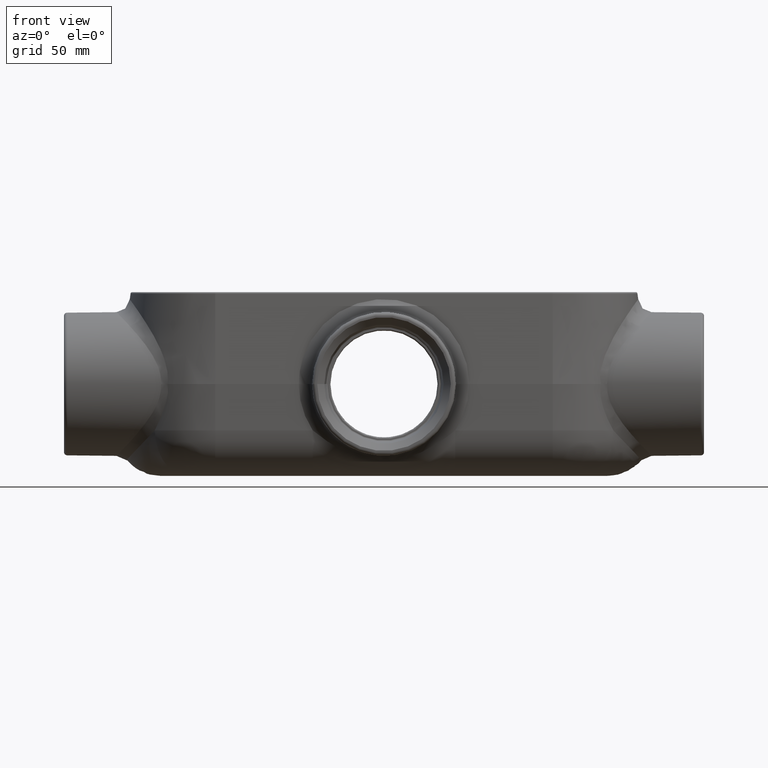
[diagram: clean part render]
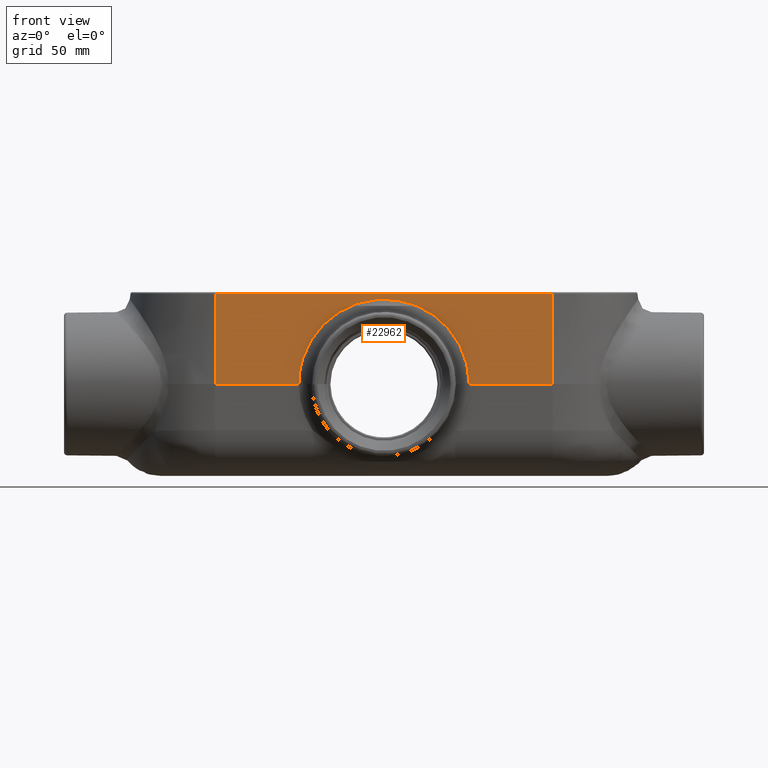
[diagram: same view with one face highlighted and labeled with its STEP entity id]
A machine part, front view. The second image highlights one B-rep face of the part: STEP entity #22962.
In plain terms, the highlighted planar face has unit normal (-0, -0.9997, 0.0262).
Its self-contained STEP definition (entity closure, byte-faithful):
#191=PLANE('',#24298);
#1157=ELLIPSE('',#24292,1.59429632553232,1.59375);
#1188=LINE('',#31611,#3934);
#1198=LINE('',#31955,#3944);
#1199=LINE('',#32503,#3945);
#1200=LINE('',#32505,#3946);
#1201=LINE('',#32506,#3947);
#3934=VECTOR('',#25498,0.393700787401575);
#3944=VECTOR('',#25532,0.393700787401575);
#3945=VECTOR('',#25565,0.393700787401575);
#3946=VECTOR('',#25566,0.393700787401575);
#3947=VECTOR('',#25567,0.393700787401575);
#7524=FACE_OUTER_BOUND('',#8815,.T.);
#8815=EDGE_LOOP('',(#16205,#16206,#16207,#16208,#16209,#16210));
#10384=VERTEX_POINT('',#31608);
#10385=VERTEX_POINT('',#31610);
#10397=VERTEX_POINT('',#31952);
#10398=VERTEX_POINT('',#31954);
#10404=VERTEX_POINT('',#32433);
#10407=VERTEX_POINT('',#32504);
#12683=EDGE_CURVE('',#10385,#10384,#1188,.T.);
#12703=EDGE_CURVE('',#10397,#10398,#1198,.T.);
#12714=EDGE_CURVE('',#10404,#10384,#1157,.T.);
#12720=EDGE_CURVE('',#10404,#10398,#1199,.T.);
#12721=EDGE_CURVE('',#10407,#10397,#1200,.T.);
#12722=EDGE_CURVE('',#10407,#10385,#1201,.T.);
#16205=ORIENTED_EDGE('',*,*,#12714,.F.);
#16206=ORIENTED_EDGE('',*,*,#12720,.T.);
#16207=ORIENTED_EDGE('',*,*,#12703,.F.);
#16208=ORIENTED_EDGE('',*,*,#12721,.F.);
#16209=ORIENTED_EDGE('',*,*,#12722,.T.);
#16210=ORIENTED_EDGE('',*,*,#12683,.T.);
#22962=ADVANCED_FACE('',(#7524),#191,.T.);
#24292=AXIS2_PLACEMENT_3D('',#32434,#25551,#25552);
#24298=AXIS2_PLACEMENT_3D('',#32502,#25563,#25564);
#25498=DIRECTION('',(1.,-5.53943038715288E-17,0.));
#25532=DIRECTION('',(0.,-0.0261769483078731,-0.999657324975557));
#25551=DIRECTION('center_axis',(-5.53753216270957E-17,-0.999657324975557,
0.0261769483078731));
#25552=DIRECTION('ref_axis',(0.,0.0261769483078731,0.999657324975557));
#25563=DIRECTION('center_axis',(-5.53753216270957E-17,-0.999657324975557,
0.0261769483078731));
#25564=DIRECTION('ref_axis',(-1.,5.53943038715288E-17,0.));
#25565=DIRECTION('',(1.,-5.53943038715288E-17,0.));
#25566=DIRECTION('',(1.,-5.53943038715288E-17,0.));
#25567=DIRECTION('',(0.,-0.0261769483078731,-0.999657324975557));
#31608=CARTESIAN_POINT('',(-1.59373656400959,-1.63875705269704,-1.71875));
#31610=CARTESIAN_POINT('',(-3.15625,-1.63875705269704,-1.71875));
#31611=CARTESIAN_POINT('',(-3.15625,-1.63875705269704,-1.71875));
#31952=CARTESIAN_POINT('',(3.15625,-1.59454688918918,-0.030431970365379));
#31954=CARTESIAN_POINT('',(3.15625,-1.63875705269704,-1.71875));
#31955=CARTESIAN_POINT('',(3.15625,-1.59375,0.));
#32433=CARTESIAN_POINT('',(1.59373656400959,-1.63875705269704,-1.71875));
#32434=CARTESIAN_POINT('Origin',(1.38438304067739E-17,-1.63892841957587,
-1.72529423707697));
#32502=CARTESIAN_POINT('Origin',(-3.15625,-1.59375,0.));
#32503=CARTESIAN_POINT('',(-3.15625,-1.63875705269704,-1.71875));
#32504=CARTESIAN_POINT('',(-3.15625,-1.59454688918918,-0.030431970365379));
#32505=CARTESIAN_POINT('',(-1.578125,-1.59454688918918,-0.030431970365379));
#32506=CARTESIAN_POINT('',(-3.15625,-1.59375,0.));